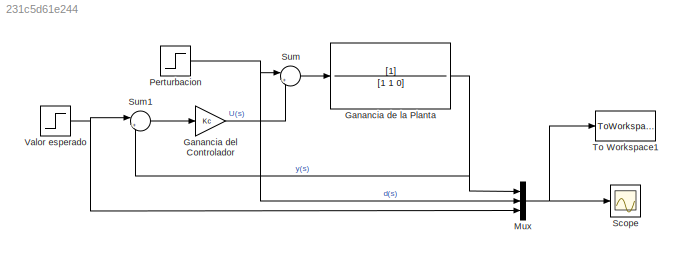
MODEL slx_231c5d61e244
KIND model
CONFIG AbsTol = auto
CONFIG EnableMultiTasking = off
CONFIG FixedStep = 1e-4
CONFIG MaxStep = auto
CONFIG MinStep = auto
CONFIG RelTol = 1e-3
CONFIG SampleTimeConstraint = Unconstrained
CONFIG SolverName = FixedStepAuto
CONFIG StartTime = 0.0
CONFIG StopTime = 15.0
BLOCK [TransferFcn] Ganancia de la Planta
  Denominator = [1 1 0]
BLOCK [Gain] Ganancia del Controlador
  Gain = Kc
BLOCK [Mux] Mux
  DisplayOption = bar
  Inputs = 3
  Ports = [3, 1]
BLOCK [Step] Perturbacion
  After = 0
  SampleTime = 1
  Time = 0
  VectorParams1D = off
BLOCK [Scope] Scope
  Floating = off
  NumInputPorts = 1
  Ports = [1]
  ScopeSpecificationString = Simulink.scopes.TimeScopeBlockCfg('CurrentConfiguration', extmgr.ConfigurationSet(extmgr.Configuration('Core','General UI',true,'FigureColor',[0.831372549019608 0.815686274509804 0.784313725490196]),extmgr.Configuration('Core','Source UI',true),extmgr.Configuration('Sources','WiredSimulink',true,'DataLogging',true,'DataLoggingDecimateData',true),extmgr.Configuration('Visuals','Time Domain',true,'S...<+2060ch>
BLOCK [Sum] Sum
  Inputs = |++
  Ports = [2, 1]
BLOCK [Sum] Sum1
  Inputs = |+-
  Ports = [2, 1]
BLOCK [ToWorkspace] To Workspace1
  MaxDataPoints = inf
  Ports = [1]
  SampleTime = -1
  SaveFormat = Timeseries
  VariableName = y
BLOCK [Step] Valor esperado
  After = Vef
  Before = Ve
  SampleTime = 0
  Time = 0
  VectorParams1D = off
NET Ganancia de la Planta:1 -> Mux:1, Sum1:2
LINE Ganancia del Controlador:1 -> Sum:2
NET Mux:1 -> Scope:1, To Workspace1:1
NET Perturbacion:1 -> Mux:2, Sum:1
LINE Sum1:1 -> Ganancia del Controlador:1
LINE Sum:1 -> Ganancia de la Planta:1
NET Valor esperado:1 -> Mux:3, Sum1:1
note: NET lines group one-source signal fan-out (src -> all destinations, sorted); 1:1 wires keep LINE
